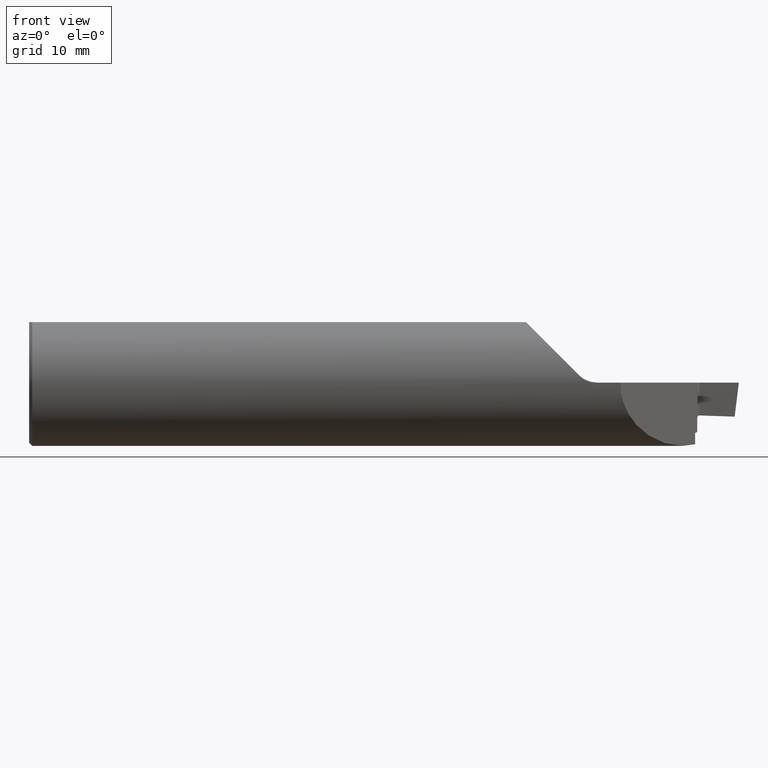
[diagram: clean part render]
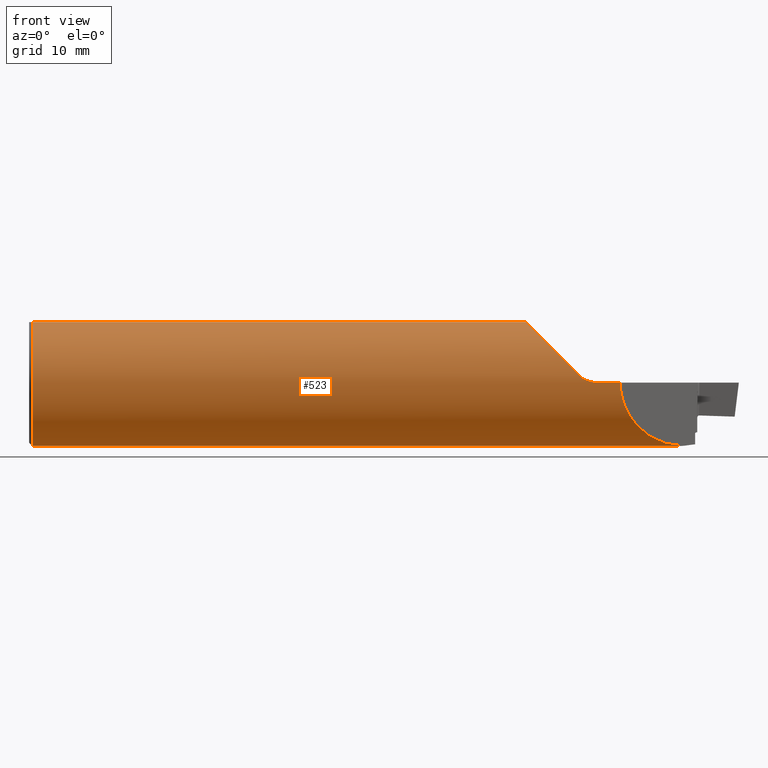
[diagram: same view with one face highlighted and labeled with its STEP entity id]
A machine part, front view. The second image highlights one B-rep face of the part: STEP entity #523.
In plain terms, the highlighted cylindrical surface (partial cylindrical patch) has radius 7.9337 mm, axis along (-1, -0, -0).
Its self-contained STEP definition (entity closure, byte-faithful):
#2 = CARTESIAN_POINT ( 'NONE',  ( 1.961347162358179741, 0.06790716442675048814, -0.3052300644977108401 ) ) ;
#7 = CARTESIAN_POINT ( 'NONE',  ( 2.914999999999998703, -0.3123499999999999610, 0.000000000000000000 ) ) ;
#13 = ORIENTED_EDGE ( 'NONE', *, *, #702, .F. ) ;
#15 = CARTESIAN_POINT ( 'NONE',  ( 1.967762752467017151, -0.004482219491798915788, -0.3123178384409499575 ) ) ;
#17 = EDGE_LOOP ( 'NONE', ( #550, #628, #521, #578, #236, #141, #516, #410, #160, #453, #194, #13 ) ) ;
#20 = CARTESIAN_POINT ( 'NONE',  ( 1.967313356345119502, -0.003896778605827549632, -0.3123257505339309126 ) ) ;
#27 = DIRECTION ( 'NONE',  ( -1.000000000000000000, -0.000000000000000000, -0.000000000000000000 ) ) ;
#40 = FACE_OUTER_BOUND ( 'NONE', #17, .T. ) ;
#73 = CARTESIAN_POINT ( 'NONE',  ( 1.968000000000000416, -0.004482219491799574983, -0.3123178384409500685 ) ) ;
#97 = B_SPLINE_CURVE_WITH_KNOTS ( 'NONE', 3,
 ( #73, #15, #642, #20, #352, #346, #290, #709, #626, #561, #436, #492, #571, #770, #502, #778, #2, #706, #229, #356, #284, #845 ),
 .UNSPECIFIED., .F., .F.,
 ( 4, 2, 2, 2, 2, 2, 2, 2, 2, 2, 4 ),
 ( 1.970594229852846459E-07, 1.803909044337599873E-05, 3.588112146376670866E-05, 7.156518350454814208E-05, 0.0001429333075861110225, 0.0002856695557492367832, 0.0005711420520754855942, 0.001142087044727985602, 0.002283977030032986050, 0.003425867015337986064, 0.004567757000642986079 ),
 .UNSPECIFIED. ) ;
#102 = CARTESIAN_POINT ( 'NONE',  ( 0.01500000000000059272, 0.000000000000000000, -0.3123500000000000165 ) ) ;
#105 = VECTOR ( 'NONE', #27, 39.37007874015748143 ) ;
#129 = CARTESIAN_POINT ( 'NONE',  ( 2.585078726976065333, -0.2952889245292886766, 0.1629212730239304185 ) ) ;
#140 = EDGE_CURVE ( 'NONE', #836, #414, #468, .T. ) ;
#141 = ORIENTED_EDGE ( 'NONE', *, *, #603, .T. ) ;
#144 = LINE ( 'NONE', #704, #105 ) ;
#158 = DIRECTION ( 'NONE',  ( 0.000000000000000000, 0.000000000000000000, -1.000000000000000000 ) ) ;
#160 = ORIENTED_EDGE ( 'NONE', *, *, #479, .T. ) ;
#166 = CARTESIAN_POINT ( 'NONE',  ( 2.767437696019467985, -0.3123286490856566622, 0.003981597903693289385 ) ) ;
#175 = B_SPLINE_CURVE_WITH_KNOTS ( 'NONE', 3,
 ( #242, #376, #246, #166, #864, #872, #668, #719, #373, #867 ),
 .UNSPECIFIED., .F., .F.,
 ( 4, 2, 2, 2, 4 ),
 ( 0.000000000000000000, 0.0006200545602135924036, 0.001240109120427184807, 0.001860163680640777211, 0.002480218240854369614 ),
 .UNSPECIFIED. ) ;
#182 = AXIS2_PLACEMENT_3D ( 'NONE', #572, #780, #158 ) ;
#194 = ORIENTED_EDGE ( 'NONE', *, *, #140, .F. ) ;
#199 = VERTEX_POINT ( 'NONE', #544 ) ;
#202 =( BOUNDED_CURVE ( )  B_SPLINE_CURVE ( 3, ( #412, #129, #548, #402 ),
 .UNSPECIFIED., .F., .T. ) 
 B_SPLINE_CURVE_WITH_KNOTS ( ( 4, 4 ),
 ( 4.829872603322638902, 5.982651106322981249 ),
 .UNSPECIFIED. ) 
 CURVE ( )  GEOMETRIC_REPRESENTATION_ITEM ( )  RATIONAL_B_SPLINE_CURVE ( ( 1.000000000000000000, 0.8922906463574401537, 0.8922906463574401537, 1.000000000000000000 ) ) 
 REPRESENTATION_ITEM ( '' )  );
#207 = CARTESIAN_POINT ( 'NONE',  ( 1.960000000000000409, 0.000000000000000000, 0.000000000000000000 ) ) ;
#218 = EDGE_CURVE ( 'NONE', #869, #857, #478, .T. ) ;
#229 = CARTESIAN_POINT ( 'NONE',  ( 1.960368899908756068, 0.1101505059355021715, -0.2926523065932738477 ) ) ;
#236 = ORIENTED_EDGE ( 'NONE', *, *, #591, .T. ) ;
#242 = CARTESIAN_POINT ( 'NONE',  ( 2.799776695296631868, -0.3123499999999999610, 0.000000000000000000 ) ) ;
#246 = CARTESIAN_POINT ( 'NONE',  ( 2.783406291026808255, -0.3123529779476911239, 0.0008095237780517812410 ) ) ;
#259 = CARTESIAN_POINT ( 'NONE',  ( 3.222867780507597146, -0.004482219492402646395, -0.3123178384409560637 ) ) ;
#284 = CARTESIAN_POINT ( 'NONE',  ( 1.960000000000000409, 0.1501376569286136109, -0.2742910705252852854 ) ) ;
#290 = CARTESIAN_POINT ( 'NONE',  ( 1.966790529255113551, -0.002606986316049827307, -0.3123394367519735648 ) ) ;
#297 = EDGE_CURVE ( 'NONE', #840, #773, #893, .T. ) ;
#308 = CARTESIAN_POINT ( 'NONE',  ( 0.000000000000000000, 0.09246512856206932918, 0.2983500000000000041 ) ) ;
#312 = EDGE_CURVE ( 'NONE', #199, #650, #144, .T. ) ;
#329 = CARTESIAN_POINT ( 'NONE',  ( 2.625000000000000000, -0.004482219491794909444, -0.3123178384409500685 ) ) ;
#332 = DIRECTION ( 'NONE',  ( -1.000000000000000000, -0.000000000000000000, -0.000000000000000000 ) ) ;
#344 = DIRECTION ( 'NONE',  ( 0.000000000000000000, 0.000000000000000000, -1.000000000000000000 ) ) ;
#346 = CARTESIAN_POINT ( 'NONE',  ( 1.966932488357366005, -0.003051807244517923401, -0.3123353797966956225 ) ) ;
#350 = B_SPLINE_CURVE_WITH_KNOTS ( 'NONE', 3,
 ( #518, #800, #791, #458 ),
 .UNSPECIFIED., .F., .F.,
 ( 4, 4 ),
 ( 0.006483673101505866773, 0.008452642523591418280 ),
 .UNSPECIFIED. ) ;
#351 = EDGE_CURVE ( 'NONE', #773, #843, #848, .T. ) ;
#352 = CARTESIAN_POINT ( 'NONE',  ( 1.967211019143644046, -0.003689047498845545586, -0.3123282865089277993 ) ) ;
#356 = CARTESIAN_POINT ( 'NONE',  ( 1.960064105020415504, 0.1371422438581685610, -0.2810169237995415181 ) ) ;
#365 = CARTESIAN_POINT ( 'NONE',  ( 0.01500000000000059099, 0.000000000000000000, 0.000000000000000000 ) ) ;
#373 = CARTESIAN_POINT ( 'NONE',  ( 2.717205864027919304, -0.3108835129758812377, 0.03079413597207513245 ) ) ;
#375 = EDGE_CURVE ( 'NONE', #869, #199, #673, .T. ) ;
#376 = CARTESIAN_POINT ( 'NONE',  ( 2.791522665335699482, -0.3123499999999999055, 1.500648922300925238E-19 ) ) ;
#398 = AXIS2_PLACEMENT_3D ( 'NONE', #365, #486, #700 ) ;
#402 = CARTESIAN_POINT ( 'NONE',  ( 2.449649999999997885, -0.09246512856206932918, 0.2983500000000000041 ) ) ;
#410 = ORIENTED_EDGE ( 'NONE', *, *, #351, .T. ) ;
#412 = CARTESIAN_POINT ( 'NONE',  ( 2.711388347648313157, -0.3101968881405479106, 0.03661165235168182402 ) ) ;
#414 = VERTEX_POINT ( 'NONE', #775 ) ;
#436 = CARTESIAN_POINT ( 'NONE',  ( 1.965429668006681618, 0.004185134267808203641, -0.3123273330972310413 ) ) ;
#447 = VECTOR ( 'NONE', #827, 39.37007874015748143 ) ;
#453 = ORIENTED_EDGE ( 'NONE', *, *, #785, .F. ) ;
#457 = EDGE_CURVE ( 'NONE', #650, #624, #175, .T. ) ;
#458 = CARTESIAN_POINT ( 'NONE',  ( 1.960728097748990928, 0.09246512856206982878, 0.2983499999999997820 ) ) ;
#459 = LINE ( 'NONE', #308, #498 ) ;
#468 = CIRCLE ( 'NONE', #731, 0.3123500000000000165 ) ;
#478 = LINE ( 'NONE', #329, #447 ) ;
#479 = EDGE_CURVE ( 'NONE', #843, #636, #459, .T. ) ;
#486 = DIRECTION ( 'NONE',  ( 1.000000000000000000, 0.000000000000000000, 0.000000000000000000 ) ) ;
#492 = CARTESIAN_POINT ( 'NONE',  ( 1.964719845097705253, 0.009679807099238829302, -0.3122214714403780400 ) ) ;
#498 = VECTOR ( 'NONE', #801, 39.37007874015748143 ) ;
#499 = CARTESIAN_POINT ( 'NONE',  ( 3.222867780507597146, -0.004482219492402646395, -0.3123178384409560637 ) ) ;
#502 = CARTESIAN_POINT ( 'NONE',  ( 1.962978368751124858, 0.03172692508847087950, -0.3108210889647209374 ) ) ;
#505 = CARTESIAN_POINT ( 'NONE',  ( 0.01500000000000059099, 0.09246512856206932918, 0.2983500000000000041 ) ) ;
#516 = ORIENTED_EDGE ( 'NONE', *, *, #297, .T. ) ;
#518 = CARTESIAN_POINT ( 'NONE',  ( 1.960000000000000409, 0.1626380916929897891, 0.2666671588899965362 ) ) ;
#519 = DIRECTION ( 'NONE',  ( -1.000000000000000000, -0.000000000000000000, -0.000000000000000000 ) ) ;
#521 = ORIENTED_EDGE ( 'NONE', *, *, #312, .T. ) ;
#522 = CARTESIAN_POINT ( 'NONE',  ( 0.01499999999999581182, -0.09246512856207692033, 0.2983500000000000041 ) ) ;
#523 = ADVANCED_FACE ( 'NONE', ( #40 ), #727, .T. ) ;
#536 = CARTESIAN_POINT ( 'NONE',  ( 1.960728097748990928, 0.09246512856206982878, 0.2983499999999997820 ) ) ;
#544 = CARTESIAN_POINT ( 'NONE',  ( 2.914999999999998703, -0.3123499999999999610, 0.000000000000000000 ) ) ;
#546 = CARTESIAN_POINT ( 'NONE',  ( 2.449649999999997885, -0.09246512856206932918, 0.2983500000000000041 ) ) ;
#548 = CARTESIAN_POINT ( 'NONE',  ( 2.487301039583585283, -0.2139507938550457289, 0.2606989604164116070 ) ) ;
#550 = ORIENTED_EDGE ( 'NONE', *, *, #218, .F. ) ;
#561 = CARTESIAN_POINT ( 'NONE',  ( 1.965693869291541995, 0.002352038502179883053, -0.3123464166765421157 ) ) ;
#562 = CARTESIAN_POINT ( 'NONE',  ( 3.041991165541702902, -0.1853588344582956793, -0.3097219934729850133 ) ) ;
#571 = CARTESIAN_POINT ( 'NONE',  ( 1.964366784501071495, 0.01335244570052913221, -0.3120861625923382343 ) ) ;
#572 = CARTESIAN_POINT ( 'NONE',  ( 0.01500000000000059099, 0.000000000000000000, 0.000000000000000000 ) ) ;
#578 = ORIENTED_EDGE ( 'NONE', *, *, #457, .T. ) ;
#588 = CARTESIAN_POINT ( 'NONE',  ( 0.000000000000000000, 0.000000000000000000, 0.000000000000000000 ) ) ;
#591 = EDGE_CURVE ( 'NONE', #624, #880, #202, .T. ) ;
#602 = CARTESIAN_POINT ( 'NONE',  ( 0.000000000000000000, -0.09246512856206932918, 0.2983500000000000041 ) ) ;
#603 = EDGE_CURVE ( 'NONE', #880, #840, #682, .T. ) ;
#620 = DIRECTION ( 'NONE',  ( 1.000000000000000000, 0.000000000000000000, 0.000000000000000000 ) ) ;
#624 = VERTEX_POINT ( 'NONE', #816 ) ;
#626 = CARTESIAN_POINT ( 'NONE',  ( 1.966216365614061878, -0.0003701974552680141581, -0.3123510986899081798 ) ) ;
#628 = ORIENTED_EDGE ( 'NONE', *, *, #375, .T. ) ;
#636 = VERTEX_POINT ( 'NONE', #536 ) ;
#642 = CARTESIAN_POINT ( 'NONE',  ( 1.967582275049901019, -0.004280569045032564177, -0.3123207262714674526 ) ) ;
#646 = AXIS2_PLACEMENT_3D ( 'NONE', #588, #519, #695 ) ;
#650 = VERTEX_POINT ( 'NONE', #899 ) ;
#655 = CARTESIAN_POINT ( 'NONE',  ( 1.968000000000000416, -0.004482219491799574983, -0.3123178384409500685 ) ) ;
#668 = CARTESIAN_POINT ( 'NONE',  ( 2.737198267252211270, -0.3119476854304215618, 0.01648500144479711146 ) ) ;
#673 =( BOUNDED_CURVE ( )  B_SPLINE_CURVE ( 3, ( #499, #562, #842, #7 ),
 .UNSPECIFIED., .F., .T. ) 
 B_SPLINE_CURVE_WITH_KNOTS ( ( 4, 4 ),
 ( 4.726739463298386568, 6.283185307179586232 ),
 .UNSPECIFIED. ) 
 CURVE ( )  GEOMETRIC_REPRESENTATION_ITEM ( )  RATIONAL_B_SPLINE_CURVE ( ( 1.000000000000000000, 0.8081081314969975615, 0.8081081314969975615, 1.000000000000000000 ) ) 
 REPRESENTATION_ITEM ( '' )  );
#679 = VECTOR ( 'NONE', #332, 39.37007874015748143 ) ;
#682 = LINE ( 'NONE', #602, #679 ) ;
#695 = DIRECTION ( 'NONE',  ( 0.000000000000000000, 0.000000000000000000, 1.000000000000000000 ) ) ;
#700 = DIRECTION ( 'NONE',  ( 0.000000000000000000, 0.000000000000000000, -1.000000000000000000 ) ) ;
#702 = EDGE_CURVE ( 'NONE', #857, #836, #97, .T. ) ;
#704 = CARTESIAN_POINT ( 'NONE',  ( 0.000000000000000000, -0.3123499999999999610, 0.000000000000000000 ) ) ;
#706 = CARTESIAN_POINT ( 'NONE',  ( 1.960609346587106394, 0.09615431653023193137, -0.2975417998640902950 ) ) ;
#709 = CARTESIAN_POINT ( 'NONE',  ( 1.966409111413173871, -0.001273356502921675019, -0.3123486698802878103 ) ) ;
#719 = CARTESIAN_POINT ( 'NONE',  ( 2.723623800555937446, -0.3113371557985921134, 0.02553995178686549114 ) ) ;
#727 = CYLINDRICAL_SURFACE ( 'NONE', #646, 0.3123500000000000165 ) ;
#731 = AXIS2_PLACEMENT_3D ( 'NONE', #207, #620, #344 ) ;
#770 = CARTESIAN_POINT ( 'NONE',  ( 1.963427599574049998, 0.02437431679596222672, -0.3114844585720413783 ) ) ;
#773 = VERTEX_POINT ( 'NONE', #102 ) ;
#775 = CARTESIAN_POINT ( 'NONE',  ( 1.960000000000000409, 0.1626380916929897891, 0.2666671588899965362 ) ) ;
#778 = CARTESIAN_POINT ( 'NONE',  ( 1.961830507054226791, 0.05356421249217874214, -0.3080725500969381248 ) ) ;
#780 = DIRECTION ( 'NONE',  ( 1.000000000000000000, 0.000000000000000000, 0.000000000000000000 ) ) ;
#785 = EDGE_CURVE ( 'NONE', #414, #636, #350, .T. ) ;
#791 = CARTESIAN_POINT ( 'NONE',  ( 1.960187379179326728, 0.1171499089251766407, 0.2906996517855017781 ) ) ;
#800 = CARTESIAN_POINT ( 'NONE',  ( 1.960000000000000409, 0.1408597388205671819, 0.2799495959404788570 ) ) ;
#801 = DIRECTION ( 'NONE',  ( 1.000000000000000000, 0.000000000000000000, 0.000000000000000000 ) ) ;
#816 = CARTESIAN_POINT ( 'NONE',  ( 2.711388347648313157, -0.3101968881405479106, 0.03661165235168182402 ) ) ;
#827 = DIRECTION ( 'NONE',  ( -1.000000000000000000, -0.000000000000000000, -0.000000000000000000 ) ) ;
#836 = VERTEX_POINT ( 'NONE', #854 ) ;
#840 = VERTEX_POINT ( 'NONE', #522 ) ;
#842 = CARTESIAN_POINT ( 'NONE',  ( 2.914999999999998259, -0.3123500000000000165, -0.1808952410999738192 ) ) ;
#843 = VERTEX_POINT ( 'NONE', #505 ) ;
#845 = CARTESIAN_POINT ( 'NONE',  ( 1.960000000000000409, 0.1626380916929897891, -0.2666671588899965362 ) ) ;
#848 = CIRCLE ( 'NONE', #182, 0.3123500000000000165 ) ;
#854 = CARTESIAN_POINT ( 'NONE',  ( 1.960000000000000409, 0.1626380916929897891, -0.2666671588899965362 ) ) ;
#857 = VERTEX_POINT ( 'NONE', #655 ) ;
#864 = CARTESIAN_POINT ( 'NONE',  ( 2.759502396207997421, -0.3123005131455937611, 0.006382863975782117338 ) ) ;
#867 = CARTESIAN_POINT ( 'NONE',  ( 2.711388347648313157, -0.3101968881405479106, 0.03661165235168182402 ) ) ;
#869 = VERTEX_POINT ( 'NONE', #259 ) ;
#872 = CARTESIAN_POINT ( 'NONE',  ( 2.744373049089623429, -0.3121094746894236827, 0.01265018863995691530 ) ) ;
#880 = VERTEX_POINT ( 'NONE', #546 ) ;
#893 = CIRCLE ( 'NONE', #398, 0.3123500000000000165 ) ;
#899 = CARTESIAN_POINT ( 'NONE',  ( 2.799776695296631868, -0.3123499999999999610, 0.000000000000000000 ) ) ;